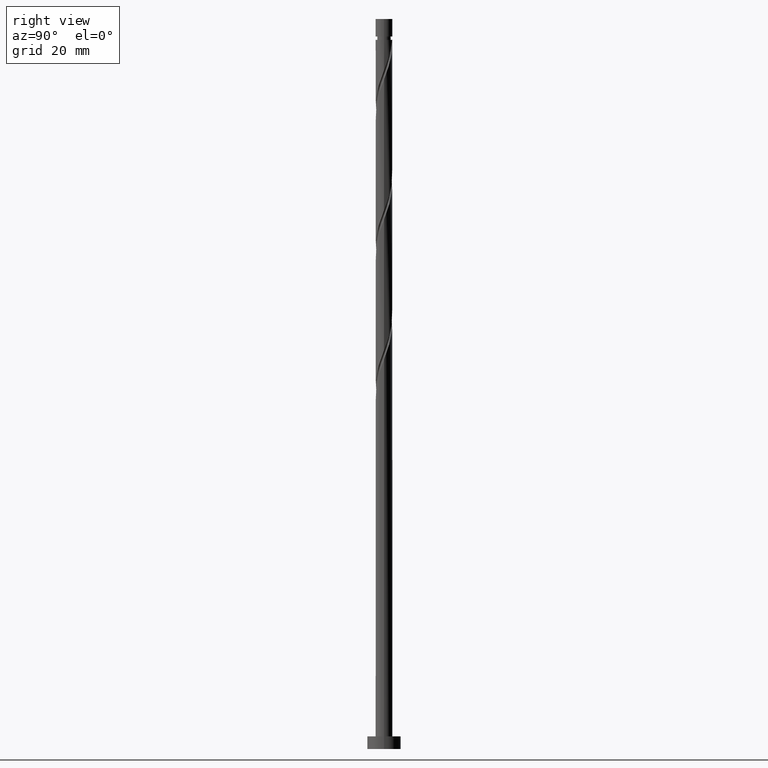
[diagram: clean part render]
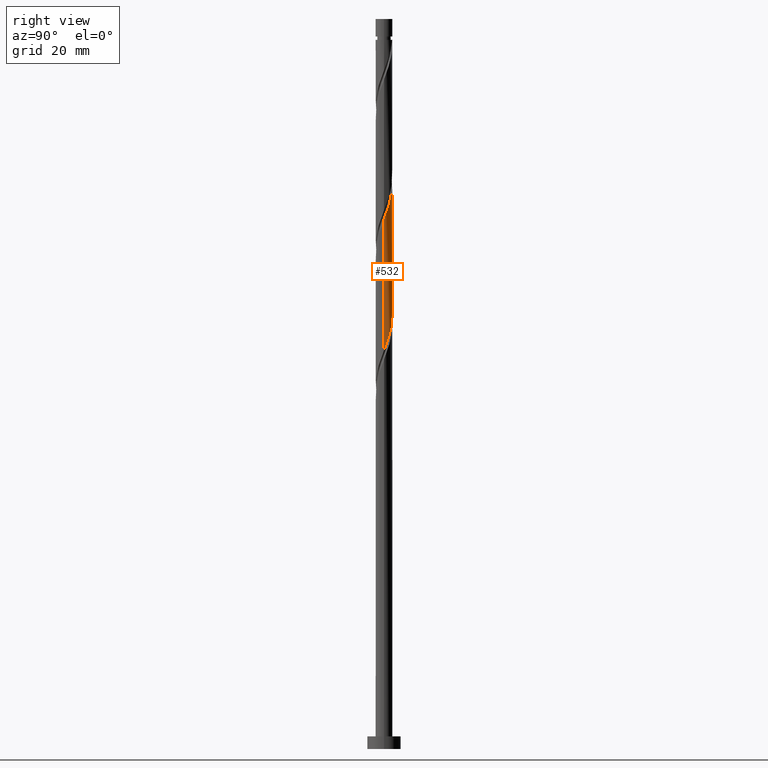
[diagram: same view with one face highlighted and labeled with its STEP entity id]
A machine part, right view. The second image highlights one B-rep face of the part: STEP entity #532.
In plain terms, the highlighted cylindrical surface (edge-blend (fillet) strip) has radius 2 mm, axis along (-0, -0, -1).
Its self-contained STEP definition (entity closure, byte-faithful):
#8 = CARTESIAN_POINT ( 'NONE',  ( -1.999999999999999556, 2.587004708746268462E-15, 111.5817495075736616 ) ) ;
#18 = CARTESIAN_POINT ( 'NONE',  ( -1.324015695162687356, 1.521943481029062406, 107.0459606301413800 ) ) ;
#46 = CARTESIAN_POINT ( 'NONE',  ( 0.3979949748426492850, 1.959999999999999520, 102.1848495190302515 ) ) ;
#82 = DIRECTION ( 'NONE',  ( -1.000000000000000000, 0.000000000000000000, 0.000000000000000000 ) ) ;
#99 = CARTESIAN_POINT ( 'NONE',  ( 0.000000000000000000, 0.000000000000000000, 173.8199999999999932 ) ) ;
#104 = CARTESIAN_POINT ( 'NONE',  ( 2.000000000000002665, 4.336597488649785241E-16, 126.1212828638201842 ) ) ;
#161 = VERTEX_POINT ( 'NONE', #1115 ) ;
#174 = CARTESIAN_POINT ( 'NONE',  ( -1.959999999999999520, 0.3979949748426487854, 110.5181828523636227 ) ) ;
#239 = CARTESIAN_POINT ( 'NONE',  ( 1.790205940182201028, 0.8917189533347233965, 128.5737384079191941 ) ) ;
#249 = CARTESIAN_POINT ( 'NONE',  ( -2.000000000000002220, 0.06148390331535225767, 142.6247858424586354 ) ) ;
#258 = CARTESIAN_POINT ( 'NONE',  ( 0.8849929959097678767, 1.812764992401017849, 132.0459606301413373 ) ) ;
#304 = CARTESIAN_POINT ( 'NONE',  ( 0.1399560795713529759, 2.012397032465266911, 102.8792939634746944 ) ) ;
#314 = CARTESIAN_POINT ( 'NONE',  ( -1.790205940182197253, 0.8917189533347235075, 109.1292939634747370 ) ) ;
#321 = CARTESIAN_POINT ( 'NONE',  ( -1.907602967534731686, 0.6560338701139447615, 109.8237384079191514 ) ) ;
#324 = DIRECTION ( 'NONE',  ( -0.000000000000000000, -0.000000000000000000, -1.000000000000000000 ) ) ;
#403 = CARTESIAN_POINT ( 'NONE',  ( -1.324673758792283662, 1.498412303996177641, 138.2959606301413658 ) ) ;
#453 = CARTESIAN_POINT ( 'NONE',  ( -1.672808912829662820, 1.127404036555501587, 108.4348495190302657 ) ) ;
#514 = CARTESIAN_POINT ( 'NONE',  ( -1.896407278838827315, 0.6353262412077188559, 141.0737384079191372 ) ) ;
#532 = ADVANCED_FACE ( 'NONE', ( #1750 ), #900, .T. ) ;
#538 = CARTESIAN_POINT ( 'NONE',  ( -1.667354236715041349, 1.104504345536228449, 139.6848495190303083 ) ) ;
#554 = CARTESIAN_POINT ( 'NONE',  ( 1.960000000000002629, 0.3979949748426486744, 127.1848495190302799 ) ) ;
#561 = VERTEX_POINT ( 'NONE', #1694 ) ;
#565 = CARTESIAN_POINT ( 'NONE',  ( 1.667354236715039795, 1.104504345536226451, 98.01818285236360850 ) ) ;
#644 = VECTOR ( 'NONE', #324, 1000.000000000000000 ) ;
#679 = CARTESIAN_POINT ( 'NONE',  ( -0.3979949748426486189, 1.960000000000002629, 135.5181828523636227 ) ) ;
#686 = EDGE_CURVE ( 'NONE', #561, #1406, #1478, .T. ) ;
#692 = DIRECTION ( 'NONE',  ( -0.000000000000000000, -0.000000000000000000, -1.000000000000000000 ) ) ;
#697 = CARTESIAN_POINT ( 'NONE',  ( 1.521943481029062628, 1.324015695162686468, 98.71262729680803716 ) ) ;
#730 = VECTOR ( 'NONE', #692, 1000.000000000000000 ) ;
#795 = CARTESIAN_POINT ( 'NONE',  ( 1.672808912829666150, 1.127404036555501810, 129.2681828523635659 ) ) ;
#804 = CARTESIAN_POINT ( 'NONE',  ( -0.6560338701139453166, 1.907602967534734573, 136.2126272968080798 ) ) ;
#821 = CARTESIAN_POINT ( 'NONE',  ( 1.907602967534735461, 0.6560338701139452056, 127.8792939634747370 ) ) ;
#840 = CARTESIAN_POINT ( 'NONE',  ( -0.1228517034671581382, 1.996223298870949847, 103.5737384079191372 ) ) ;
#848 = CARTESIAN_POINT ( 'NONE',  ( 0.6560338701139465378, 1.907602967534731242, 101.4904050745858086 ) ) ;
#856 = CARTESIAN_POINT ( 'NONE',  ( 1.996223298870950735, 0.1228517034671572083, 95.24040507458582283 ) ) ;
#859 = EDGE_CURVE ( 'NONE', #161, #1114, #1613, .T. ) ;
#869 = CARTESIAN_POINT ( 'NONE',  ( -2.000000000000000000, 0.000000000000000000, 173.8199999999999932 ) ) ;
#898 = ORIENTED_EDGE ( 'NONE', *, *, #686, .F. ) ;
#900 = CYLINDRICAL_SURFACE ( 'NONE', #1621, 2.000000000000000000 ) ;
#934 = CARTESIAN_POINT ( 'NONE',  ( 2.000000000000000000, 2.449293598294706414E-16, 173.8199999999999932 ) ) ;
#952 = CARTESIAN_POINT ( 'NONE',  ( -0.1399560795713508665, 2.012397032465270019, 134.8237384079191372 ) ) ;
#962 = CARTESIAN_POINT ( 'NONE',  ( 0.6353262412077195220, 1.896407278838826649, 132.7404050745858228 ) ) ;
#979 = CARTESIAN_POINT ( 'NONE',  ( -1.104504345536226673, 1.667354236715039573, 106.3515161856969371 ) ) ;
#985 = EDGE_LOOP ( 'NONE', ( #898, #1237, #1070, #1697 ) ) ;
#990 = CARTESIAN_POINT ( 'NONE',  ( -1.999999999999999556, 0.2010075630518443346, 111.0483231383843759 ) ) ;
#998 = CARTESIAN_POINT ( 'NONE',  ( -0.8849929959097652121, 1.812764992401015407, 105.6570717412524942 ) ) ;
#1009 = LINE ( 'NONE', #869, #644 ) ;
#1044 = EDGE_CURVE ( 'NONE', #561, #1114, #1056, .T. ) ;
#1056 = LINE ( 'NONE', #934, #730 ) ;
#1070 = ORIENTED_EDGE ( 'NONE', *, *, #859, .F. ) ;
#1081 = CARTESIAN_POINT ( 'NONE',  ( -1.127404036555502476, 1.672808912829665262, 137.6015161856969087 ) ) ;
#1089 = CARTESIAN_POINT ( 'NONE',  ( -1.812764992401018072, 0.8849929959097668775, 140.3792939634747086 ) ) ;
#1091 = DIRECTION ( 'NONE',  ( -0.000000000000000000, -0.000000000000000000, -1.000000000000000000 ) ) ;
#1101 = CARTESIAN_POINT ( 'NONE',  ( 1.812764992401016073, 0.8849929959097638799, 97.32373840791912301 ) ) ;
#1108 = CARTESIAN_POINT ( 'NONE',  ( 1.896407278838824872, 0.6353262412077160803, 96.62929396347475119 ) ) ;
#1114 = VERTEX_POINT ( 'NONE', #1583 ) ;
#1115 = CARTESIAN_POINT ( 'NONE',  ( -1.999999999999999556, 2.587004708746268462E-15, 111.5817495075736616 ) ) ;
#1117 = CARTESIAN_POINT ( 'NONE',  ( -0.6353262412077173016, 1.896407278838824428, 104.9626272968080514 ) ) ;
#1211 = CARTESIAN_POINT ( 'NONE',  ( 1.498412303996178752, 1.324673758792282774, 129.9626272968080514 ) ) ;
#1237 = ORIENTED_EDGE ( 'NONE', *, *, #1044, .T. ) ;
#1254 = CARTESIAN_POINT ( 'NONE',  ( 1.127404036555502920, 1.672808912829662153, 100.1015161856969087 ) ) ;
#1332 = CARTESIAN_POINT ( 'NONE',  ( -2.000000000000002665, -1.009380449944346221E-15, 142.7879495304868556 ) ) ;
#1351 = CARTESIAN_POINT ( 'NONE',  ( 0.1228517034671602198, 1.996223298870952956, 134.1292939634747086 ) ) ;
#1389 = CARTESIAN_POINT ( 'NONE',  ( 2.000000000000000000, 2.459897540975497552E-15, 94.91508284090700442 ) ) ;
#1397 = CARTESIAN_POINT ( 'NONE',  ( 1.324673758792283218, 1.498412303996174533, 99.40707174125248002 ) ) ;
#1406 = VERTEX_POINT ( 'NONE', #1409 ) ;
#1409 = CARTESIAN_POINT ( 'NONE',  ( -2.000000000000002665, -1.009380449944346221E-15, 142.7879495304868556 ) ) ;
#1429 = EDGE_CURVE ( 'NONE', #1406, #161, #1009, .T. ) ;
#1449 = CARTESIAN_POINT ( 'NONE',  ( 2.000000000000001776, 0.2010075630518466661, 126.6547092330094699 ) ) ;
#1460 = CARTESIAN_POINT ( 'NONE',  ( 1.104504345536228671, 1.667354236715041349, 131.3515161856969371 ) ) ;
#1469 = CARTESIAN_POINT ( 'NONE',  ( -1.996223298870952956, 0.1228517034671589986, 142.4626272968080514 ) ) ;
#1478 =( BOUNDED_CURVE ( )  B_SPLINE_CURVE ( 2, ( #104, #1449, #554, #821, #239, #795, #1211, #1748, #1460, #258, #962, #1589, #1351, #952, #679, #804, #1730, #1081, #403, #1739, #538, #1089, #514, #1487, #1469, #249, #1332 ),
 .UNSPECIFIED., .F., .T. ) 
 B_SPLINE_CURVE_WITH_KNOTS ( ( 3, 2, 2, 2, 2, 2, 2, 2, 2, 2, 2, 2, 2, 3 ),
 ( 0.4295317669814465167, 0.4375000000000000000, 0.4479166666666666297, 0.4583333333333333703, 0.4687500000000000000, 0.4791666666666666297, 0.4895833333333333703, 0.5000000000000000000, 0.5104166666666667407, 0.5208333333333332593, 0.5312500000000000000, 0.5416666666666667407, 0.5520833333333332593, 0.5545317669814460171 ),
 .UNSPECIFIED. ) 
 CURVE ( )  GEOMETRIC_REPRESENTATION_ITEM ( )  RATIONAL_B_SPLINE_CURVE ( ( 0.9062941362546527158, 0.9031415850403572421, 0.9090909090909324863, 0.9013135103398509651, 0.9090909090909324863, 0.9013135103398509651, 0.9090909090909324863, 0.9013135103398509651, 0.9090909090909324863, 0.9013135103398509651, 0.9090909090909324863, 0.9013135103398509651, 0.9090909090909324863, 0.9013135103398509651, 0.9090909090909324863, 0.9013135103398509651, 0.9090909090909324863, 0.9013135103398509651, 0.9090909090909324863, 0.9013135103398509651, 0.9090909090909324863, 0.9013135103398509651, 0.9090909090909324863, 0.9013135103398509651, 0.9090909090909324863, 0.9072628343904265424, 0.9062941362546530488 ) ) 
 REPRESENTATION_ITEM ( '' )  );
#1487 = CARTESIAN_POINT ( 'NONE',  ( -1.980049565276635670, 0.3856594865056701682, 141.7681828523635943 ) ) ;
#1508 = CARTESIAN_POINT ( 'NONE',  ( 2.000000000000000000, 0.06148390331534718534, 95.07824652893512507 ) ) ;
#1525 = CARTESIAN_POINT ( 'NONE',  ( -0.3856594865056692245, 1.980049565276631895, 104.2681828523635801 ) ) ;
#1532 = CARTESIAN_POINT ( 'NONE',  ( 0.8917189533347246178, 1.790205940182196809, 100.7959606301413942 ) ) ;
#1583 = CARTESIAN_POINT ( 'NONE',  ( 2.000000000000000000, 2.459897540975497552E-15, 94.91508284090700442 ) ) ;
#1589 = CARTESIAN_POINT ( 'NONE',  ( 0.3856594865056713894, 1.980049565276635670, 133.4348495190303083 ) ) ;
#1613 =( BOUNDED_CURVE ( )  B_SPLINE_CURVE ( 2, ( #8, #990, #174, #321, #314, #453, #1667, #18, #979, #998, #1117, #1525, #840, #304, #46, #848, #1532, #1254, #1397, #697, #565, #1101, #1108, #1630, #856, #1508, #1389 ),
 .UNSPECIFIED., .F., .T. ) 
 B_SPLINE_CURVE_WITH_KNOTS ( ( 3, 2, 2, 2, 2, 2, 2, 2, 2, 2, 2, 2, 2, 3 ),
 ( 0.6795317669814463502, 0.6875000000000000000, 0.6979166666666666297, 0.7083333333333333703, 0.7187500000000000000, 0.7291666666666666297, 0.7395833333333333703, 0.7500000000000000000, 0.7604166666666666297, 0.7708333333333333703, 0.7812500000000000000, 0.7916666666666666297, 0.8020833333333333703, 0.8045317669814462391 ),
 .UNSPECIFIED. ) 
 CURVE ( )  GEOMETRIC_REPRESENTATION_ITEM ( )  RATIONAL_B_SPLINE_CURVE ( ( 0.9062941362546468316, 0.9031415850403511358, 0.9090909090909264911, 0.9013135103398449699, 0.9090909090909264911, 0.9013135103398449699, 0.9090909090909264911, 0.9013135103398449699, 0.9090909090909264911, 0.9013135103398449699, 0.9090909090909264911, 0.9013135103398449699, 0.9090909090909264911, 0.9013135103398449699, 0.9090909090909264911, 0.9013135103398449699, 0.9090909090909264911, 0.9013135103398449699, 0.9090909090909264911, 0.9013135103398449699, 0.9090909090909264911, 0.9013135103398449699, 0.9090909090909264911, 0.9013135103398449699, 0.9090909090909264911, 0.9072628343904203252, 0.9062941362546469426 ) ) 
 REPRESENTATION_ITEM ( '' )  );
#1621 = AXIS2_PLACEMENT_3D ( 'NONE', #99, #1091, #82 ) ;
#1630 = CARTESIAN_POINT ( 'NONE',  ( 1.980049565276632562, 0.3856594865056679478, 95.93484951903025149 ) ) ;
#1667 = CARTESIAN_POINT ( 'NONE',  ( -1.498412303996174977, 1.324673758792282552, 107.7404050745858228 ) ) ;
#1694 = CARTESIAN_POINT ( 'NONE',  ( 2.000000000000002665, 4.336597488649785241E-16, 126.1212828638201842 ) ) ;
#1697 = ORIENTED_EDGE ( 'NONE', *, *, #1429, .F. ) ;
#1730 = CARTESIAN_POINT ( 'NONE',  ( -0.8917189533347240626, 1.790205940182200806, 136.9070717412525369 ) ) ;
#1739 = CARTESIAN_POINT ( 'NONE',  ( -1.521943481029064626, 1.324015695162689799, 138.9904050745857660 ) ) ;
#1748 = CARTESIAN_POINT ( 'NONE',  ( 1.324015695162691575, 1.521943481029063294, 130.6570717412524800 ) ) ;
#1750 = FACE_OUTER_BOUND ( 'NONE', #985, .T. ) ;